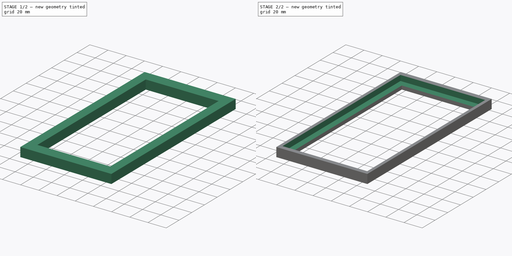
[diagram: build sequence overview — one tinted view per stage of 2, left to right]
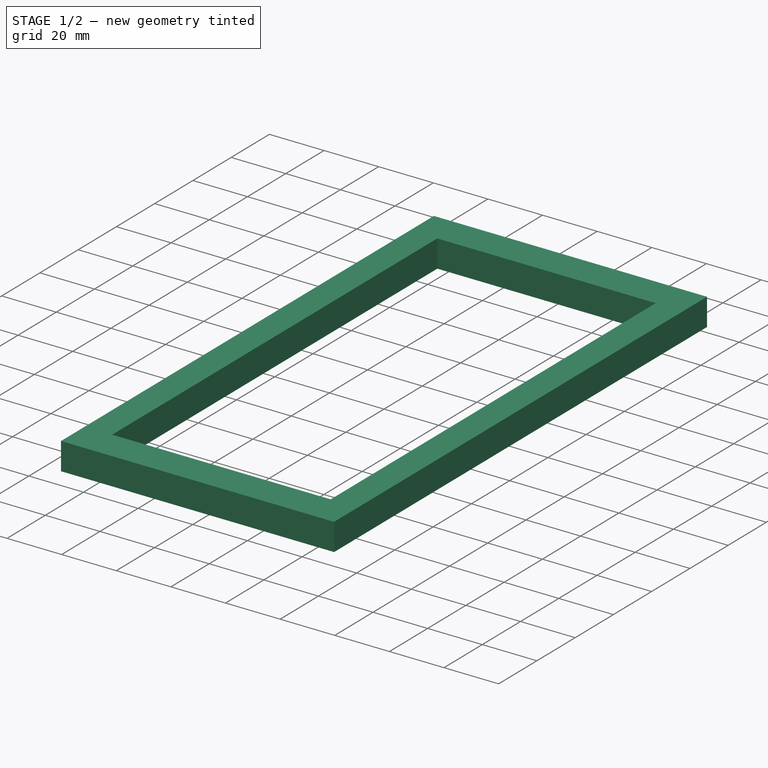
[diagram: stage 1 of 2 — iso view after this stage's code; geometry added in this stage tinted green]
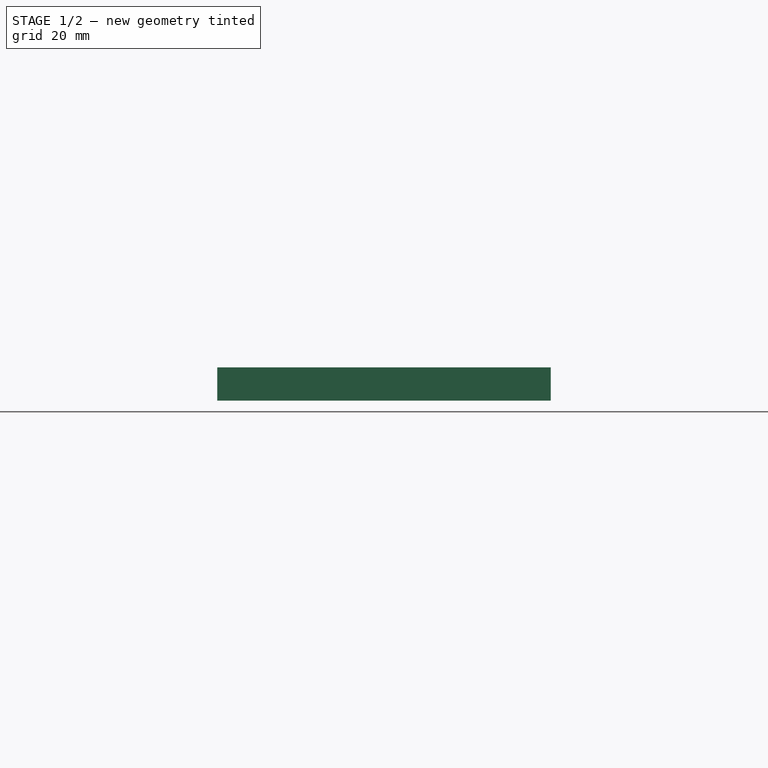
[diagram: stage 1 of 2 — front view after this stage's code; geometry added in this stage tinted green]
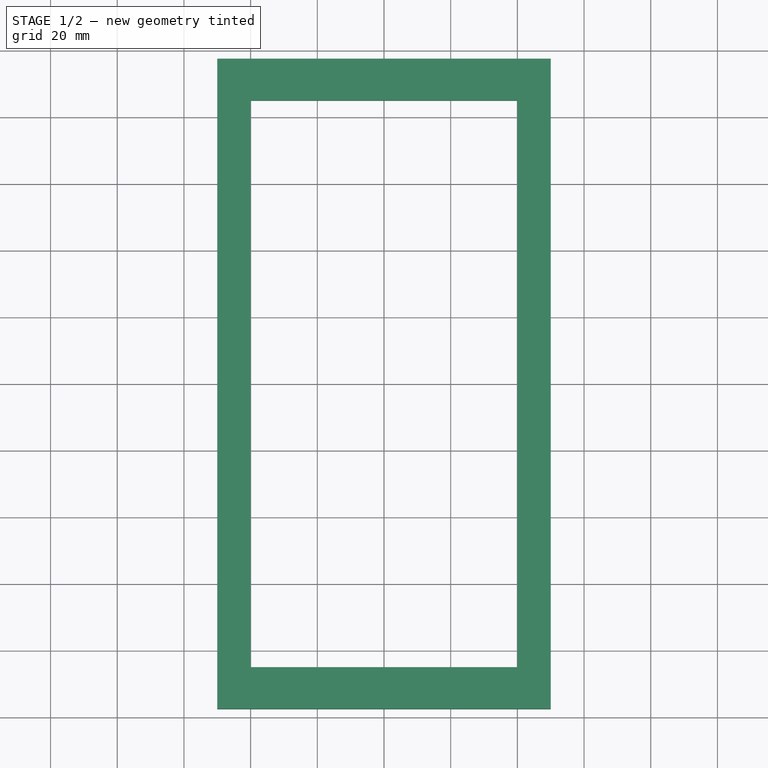
[diagram: stage 1 of 2 — top view after this stage's code; geometry added in this stage tinted green]
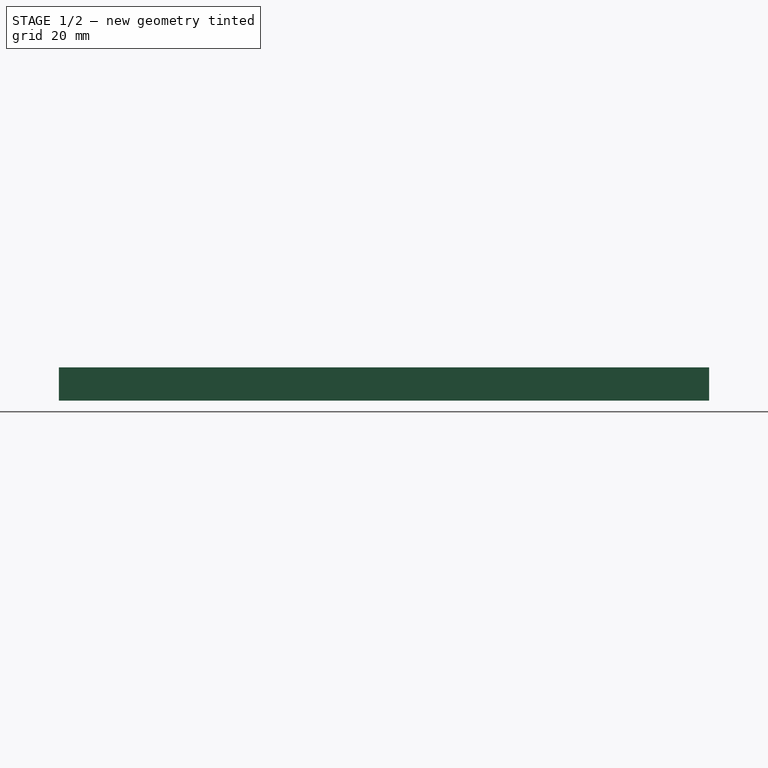
[diagram: stage 1 of 2 — right view after this stage's code; geometry added in this stage tinted green]
FCSTD DOCUMENT  (FreeCAD 0.16R6703 (Git))
Label: Moldura
License: FreeArt
LicenseURL: http://artlibre.org/licence/lal
objects: Sketcher::SketchObject×3, PartDesign::Pocket×2, PartDesign::Pad×1
note: 9 computed .brp shape members not serialized (recipe doc carries the construction recipe); baked Part::Feature solids carry a one-line shape summary decoded from their .brp

FEATURE [Sketcher::SketchObject] Sketch
  sketch-geometry (4):
    g0: LineSegment StartX=-50 StartY=97.5 StartZ=0 EndX=50 EndY=97.5 EndZ=0
    g1: LineSegment StartX=50 StartY=97.5 StartZ=0 EndX=50 EndY=-97.5 EndZ=0
    g2: LineSegment StartX=50 StartY=-97.5 StartZ=0 EndX=-50 EndY=-97.5 EndZ=0
    g3: LineSegment StartX=-50 StartY=-97.5 StartZ=0 EndX=-50 EndY=97.5 EndZ=0
  constraints (14):
    c: Coincident(g0,g1)
    c: Coincident(g1,g2)
    c: Coincident(g2,g3)
    c: Coincident(g3,g0)
    c: Horizontal(g0)
    c: Horizontal(g2)
    c: Vertical(g1)
    c: Vertical(g3)
    c: Equal(g2,g0)
    c: Equal(g3,g1)
    c: DistanceX(g0,g0) = 100
    c: DistanceY(g1,g1) = 195
    c: Symmetric(g2,g1,g-2)
    c: DistanceY(g-1,g2) = -97.5
FEATURE [PartDesign::Pad] Pad
  Length = 10
  Length2 = 100
  Sketch = -> Sketch
  Type = 0
FEATURE [Sketcher::SketchObject] Sketch001
  Placement = pos=(0,0,10) rot=(0,0,1;0rad)
  Support = -> Pad [Face6]
  sketch-geometry (4):
    g0: LineSegment StartX=-40 StartY=85 StartZ=0 EndX=40 EndY=85 EndZ=0
    g1: LineSegment StartX=40 StartY=85 StartZ=0 EndX=40 EndY=-85 EndZ=0
    g2: LineSegment StartX=40 StartY=-85 StartZ=0 EndX=-40 EndY=-85 EndZ=0
    g3: LineSegment StartX=-40 StartY=-85 StartZ=0 EndX=-40 EndY=85 EndZ=0
  constraints (13):
    c: Coincident(g0,g1)
    c: Coincident(g1,g2)
    c: Coincident(g2,g3)
    c: Coincident(g3,g0)
    c: Horizontal(g2)
    c: Vertical(g1)
    c: Vertical(g3)
    c: Equal(g0,g2)
    c: Equal(g3,g1)
    c: Symmetric(g0,g0,g-2)
    c: DistanceX(g0,g0) = 80
    c: DistanceY(g1,g1) = 170
    c: Distance(g-1,g2) = 85
FEATURE [PartDesign::Pocket] Pocket
  Length = 6
  Sketch = -> Sketch001
  Type = 1
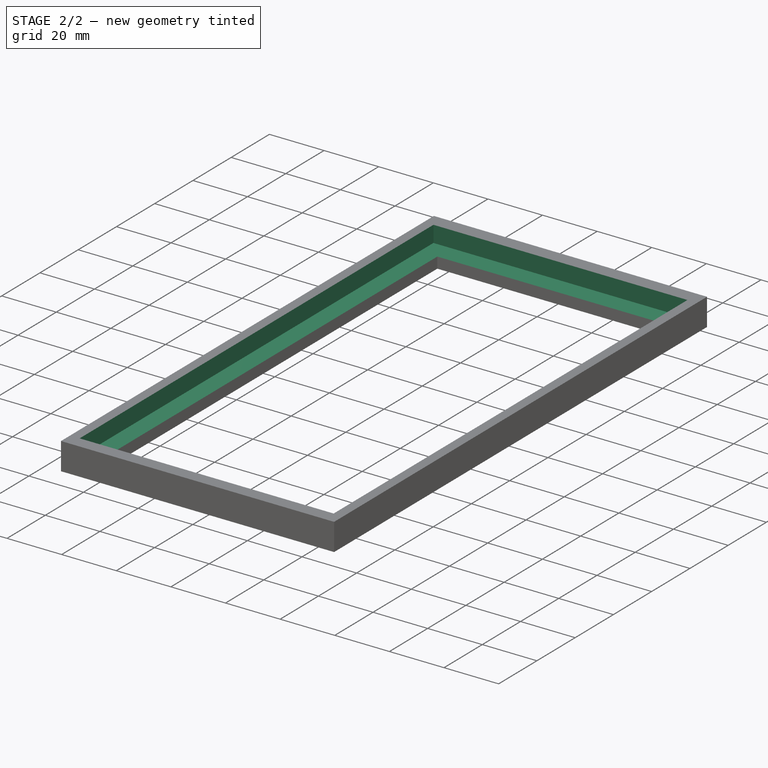
[diagram: stage 2 of 2 — iso view after this stage's code; geometry added in this stage tinted green]
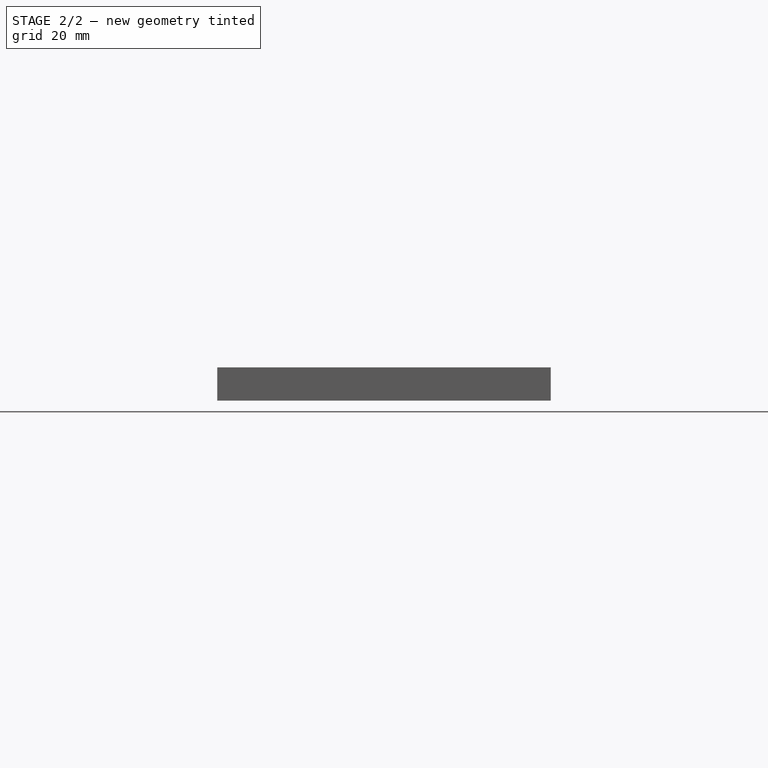
[diagram: stage 2 of 2 — front view after this stage's code; geometry added in this stage tinted green]
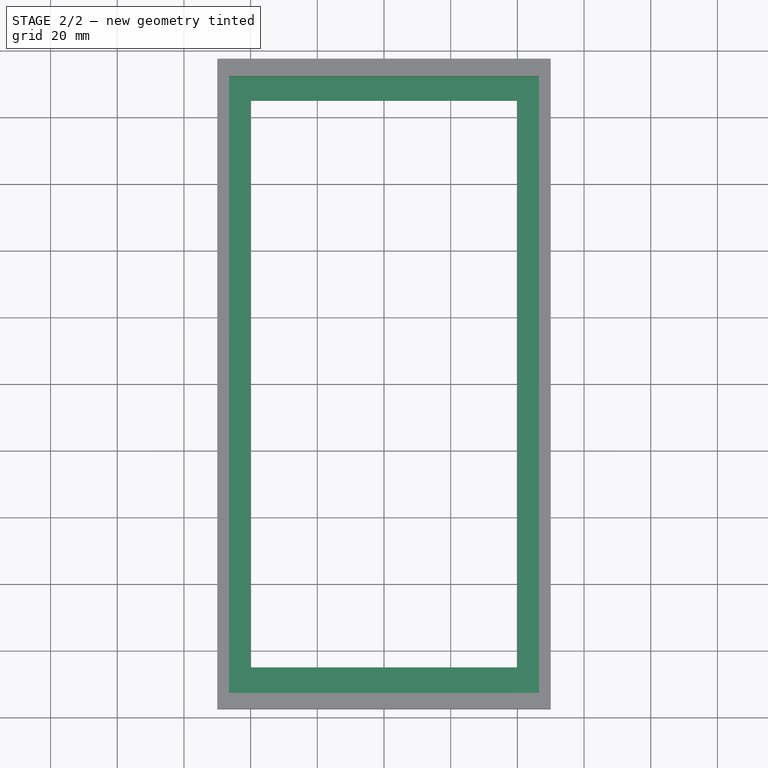
[diagram: stage 2 of 2 — top view after this stage's code; geometry added in this stage tinted green]
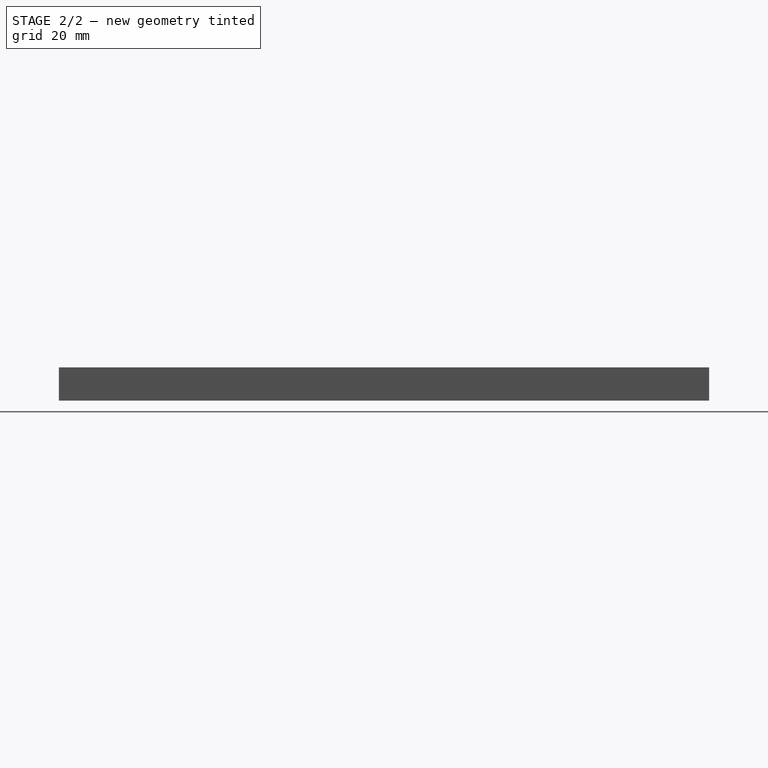
[diagram: stage 2 of 2 — right view after this stage's code; geometry added in this stage tinted green]
FEATURE [Sketcher::SketchObject] Sketch003
  Placement = pos=(0,0,10) rot=(0,0,1;0rad)
  Support = -> Pocket [Face5]
  sketch-geometry (4):
    g0: LineSegment StartX=-46.5 StartY=92.2641 StartZ=0 EndX=46.5 EndY=92.2641 EndZ=0
    g1: LineSegment StartX=46.5 StartY=92.2641 StartZ=0 EndX=46.5 EndY=-92.7359 EndZ=0
    g2: LineSegment StartX=46.5 StartY=-92.7359 StartZ=0 EndX=-46.5 EndY=-92.7359 EndZ=0
    g3: LineSegment StartX=-46.5 StartY=-92.7359 StartZ=0 EndX=-46.5 EndY=92.2641 EndZ=0
  constraints (12):
    c: Coincident(g0,g1)
    c: Coincident(g1,g2)
    c: Coincident(g2,g3)
    c: Coincident(g3,g0)
    c: Horizontal(g2)
    c: Vertical(g1)
    c: Vertical(g3)
    c: Equal(g0,g2)
    c: DistanceX(g0,g0) = 93
    c: Symmetric(g0,g0,g-2)
    c: Equal(g3,g1)
    c: DistanceY(g3,g3) = 185
FEATURE [PartDesign::Pocket] Pocket001
  Length = 6
  Sketch = -> Sketch003
  Type = 0
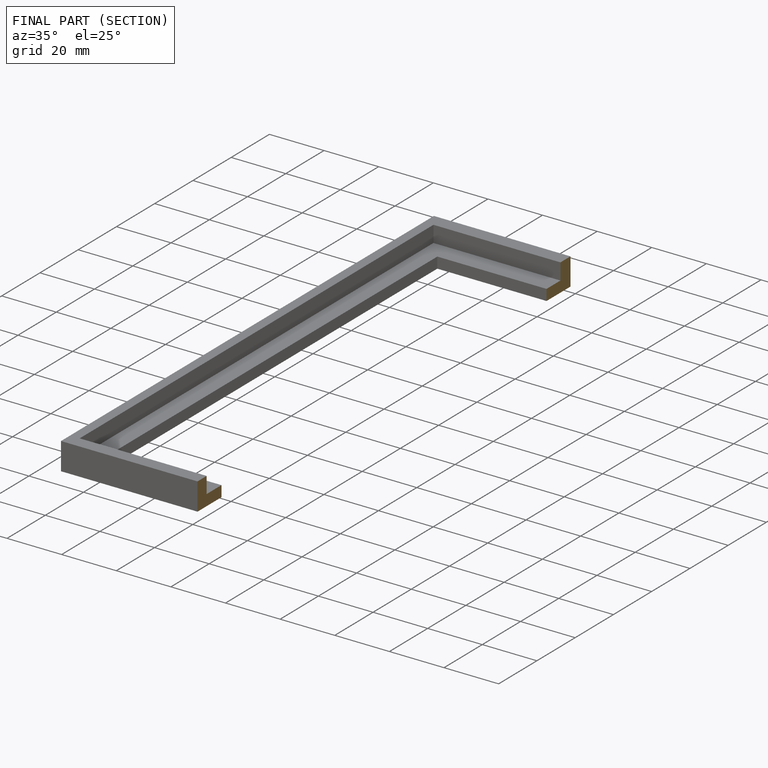
[diagram: finished part — half-section view (interior)]
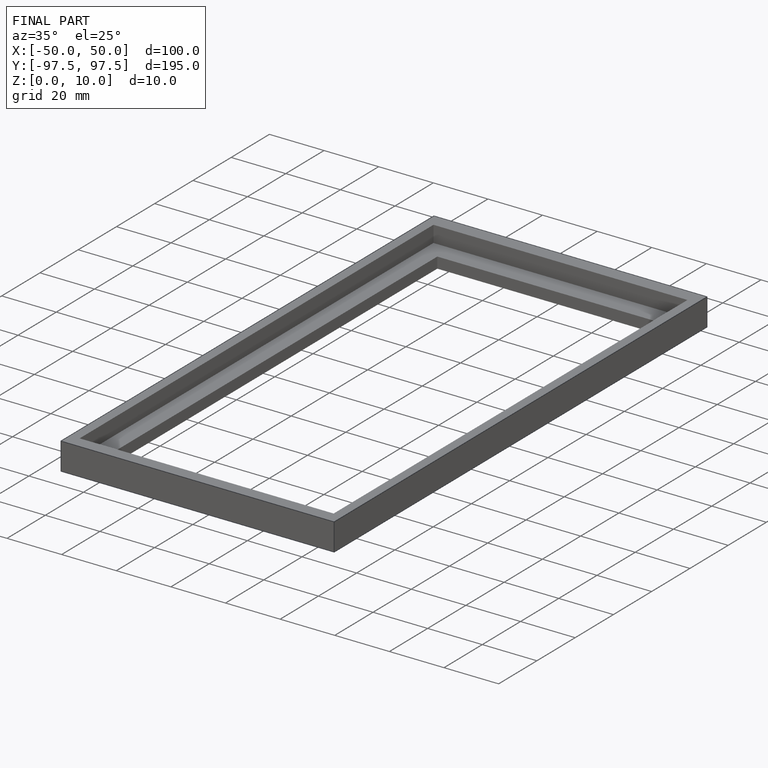
[diagram: finished part — iso view with bounding-box wireframe]
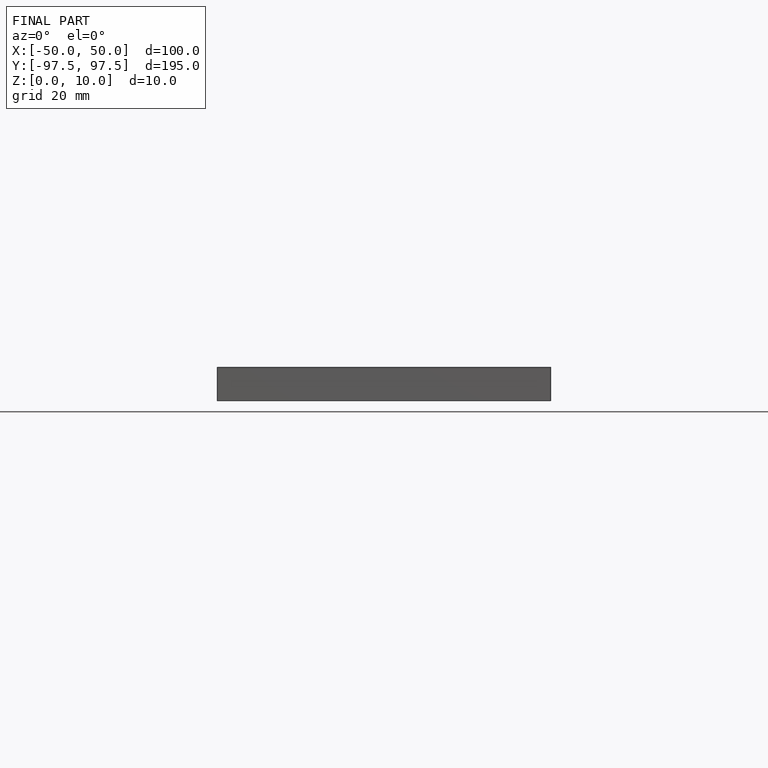
[diagram: finished part — front view with bounding-box wireframe]
